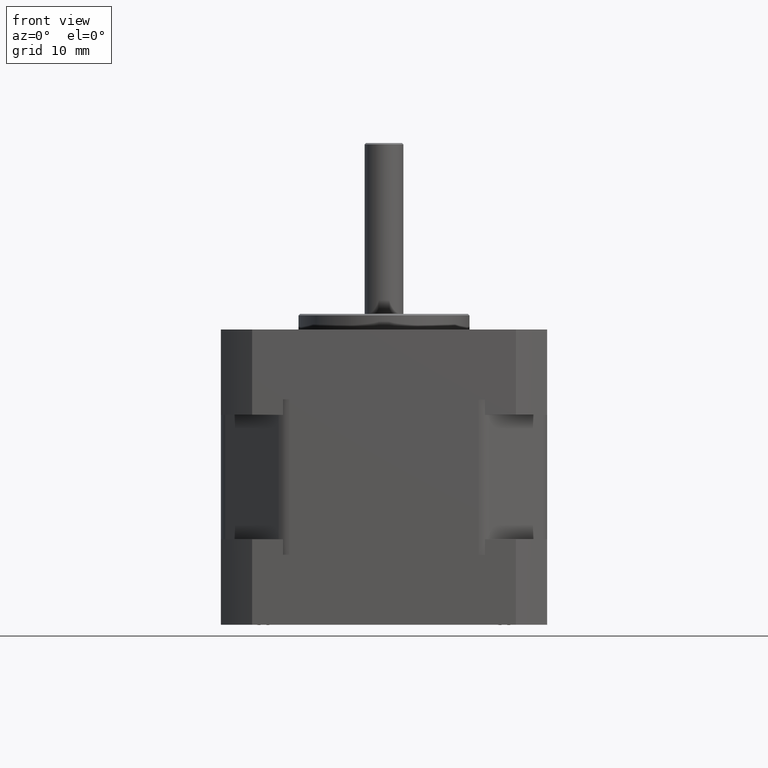
[diagram: clean part render]
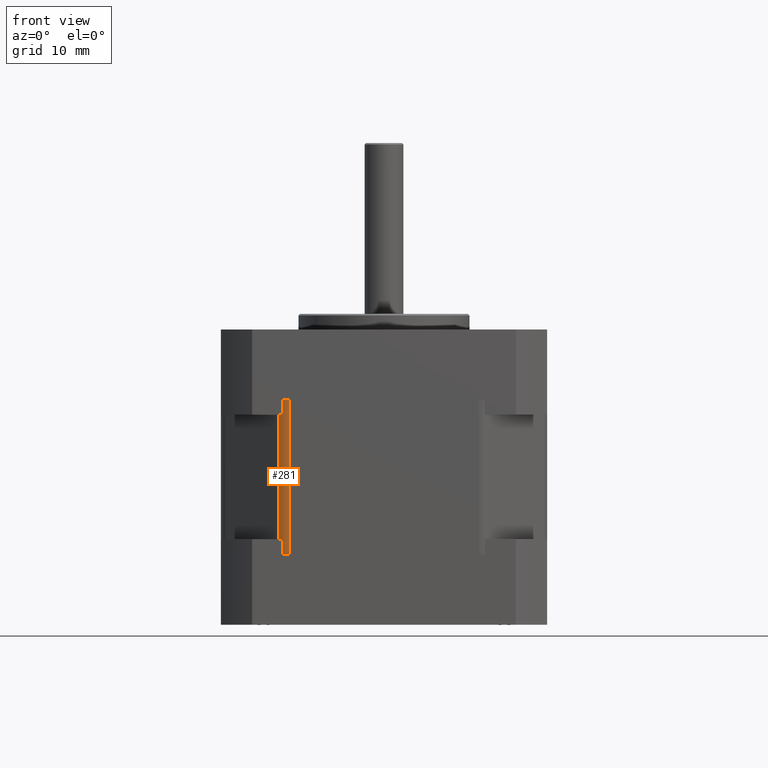
[diagram: same view with one face highlighted and labeled with its STEP entity id]
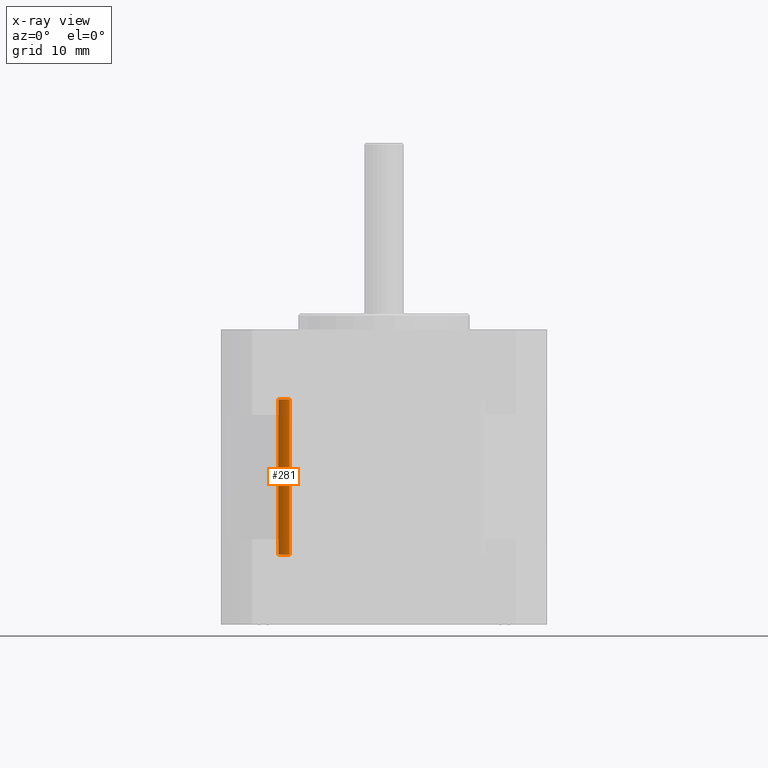
[diagram: x-ray of the same camera — body ghosted, the highlighted face saturated]
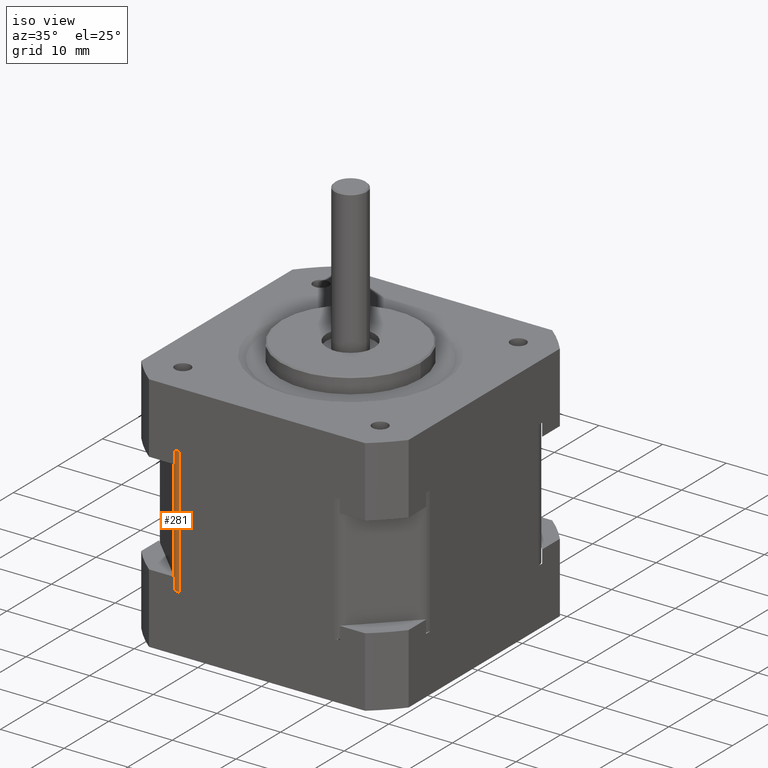
[diagram: same view with one face highlighted and labeled with its STEP entity id]
A machine part, front view. The second image highlights one B-rep face of the part: STEP entity #281.
The next image is the same camera in x-ray: the body ghosted, the highlighted face saturated — about 0% of this face is hidden behind the body in this view.
A second angle (iso view) of the same face is appended — the face is thin or edge-on in the first view.
In plain terms, the highlighted cylindrical surface (edge-blend (fillet) strip) has radius 2 mm, axis along (0, -0, 1).
Its self-contained STEP definition (entity closure, byte-faithful):
#224=CARTESIAN_POINT('',(-13.585786437626888,-20.414213562373114,-4.749999999999992));
#225=VERTEX_POINT('',#224);
#232=CARTESIAN_POINT('',(-13.585786437626888,-20.414213562373114,15.250000000000007));
#233=VERTEX_POINT('',#232);
#234=CARTESIAN_POINT('',(-13.585786437626888,-20.414213562373114,15.250000000000007));
#235=DIRECTION('',(0.0,0.0,-1.0));
#236=VECTOR('',#235,20.0);
#237=LINE('',#234,#236);
#238=EDGE_CURVE('',#233,#225,#237,.T.);
#249=CARTESIAN_POINT('',(-12.171572875253794,-19.000000000000014,5.250000000000008));
#250=DIRECTION('',(1.213311E-178,-2.564162E-033,1.0));
#251=DIRECTION('',(-0.382683432365089,-0.923879532511287,-2.368977E-033));
#252=AXIS2_PLACEMENT_3D('',#249,#250,#251);
#253=CYLINDRICAL_SURFACE('',#252,2.0);
#254=CARTESIAN_POINT('',(-12.171572875253791,-21.000000000000014,15.250000000000007));
#255=VERTEX_POINT('',#254);
#256=CARTESIAN_POINT('',(-12.171572875253794,-19.000000000000014,15.250000000000007));
#257=DIRECTION('',(9.065681E-034,2.188649E-033,-1.0));
#258=DIRECTION('',(-0.382683432365089,-0.923879532511287,-2.368977E-033));
#259=AXIS2_PLACEMENT_3D('',#256,#257,#258);
#260=CIRCLE('',#259,2.0);
#261=EDGE_CURVE('',#255,#233,#260,.T.);
#262=ORIENTED_EDGE('',*,*,#261,.T.);
#263=ORIENTED_EDGE('',*,*,#238,.T.);
#264=CARTESIAN_POINT('',(-12.171572875253791,-21.000000000000014,-4.749999999999992));
#265=VERTEX_POINT('',#264);
#266=CARTESIAN_POINT('',(-12.171572875253794,-19.000000000000014,-4.749999999999992));
#267=DIRECTION('',(-9.065681E-034,-2.188649E-033,1.0));
#268=DIRECTION('',(-0.382683432365089,-0.923879532511287,-2.368977E-033));
#269=AXIS2_PLACEMENT_3D('',#266,#267,#268);
#270=CIRCLE('',#269,2.0);
#271=EDGE_CURVE('',#225,#265,#270,.T.);
#272=ORIENTED_EDGE('',*,*,#271,.T.);
#273=CARTESIAN_POINT('',(-12.171572875253791,-21.000000000000014,-4.749999999999992));
#274=DIRECTION('',(0.0,0.0,1.0));
#275=VECTOR('',#274,20.0);
#276=LINE('',#273,#275);
#277=EDGE_CURVE('',#265,#255,#276,.T.);
#278=ORIENTED_EDGE('',*,*,#277,.T.);
#279=EDGE_LOOP('',(#262,#263,#272,#278));
#280=FACE_OUTER_BOUND('',#279,.T.);
#281=ADVANCED_FACE('',(#280),#253,.T.);